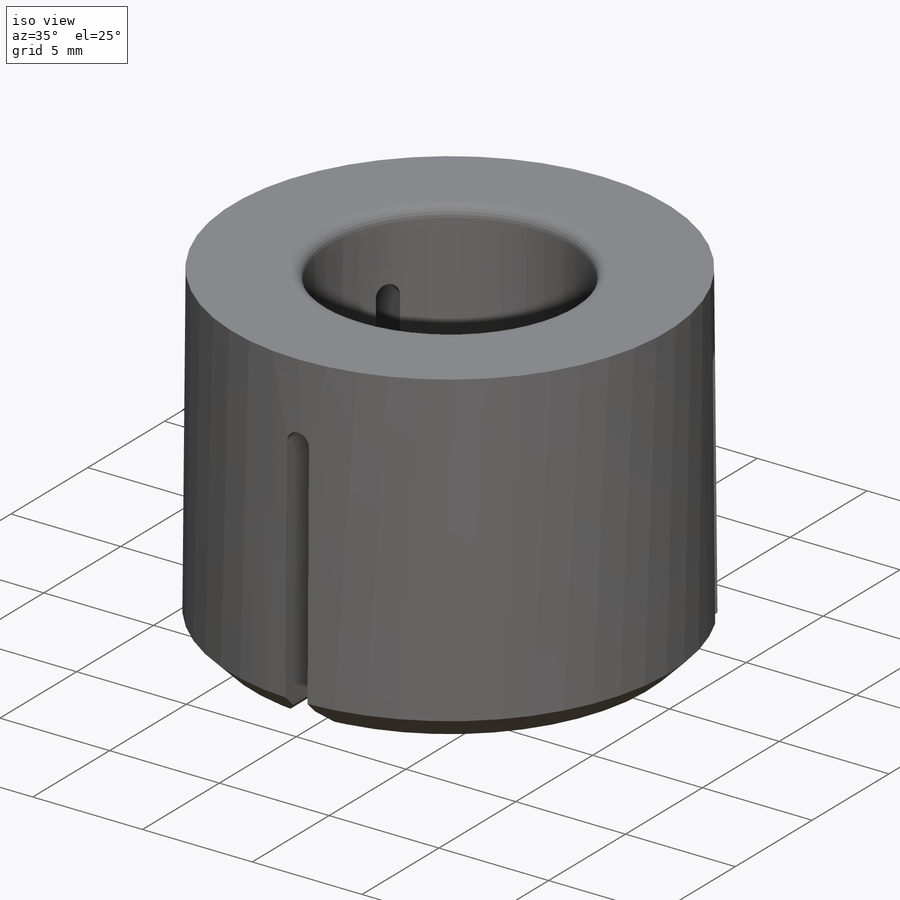
[diagram: iso view]
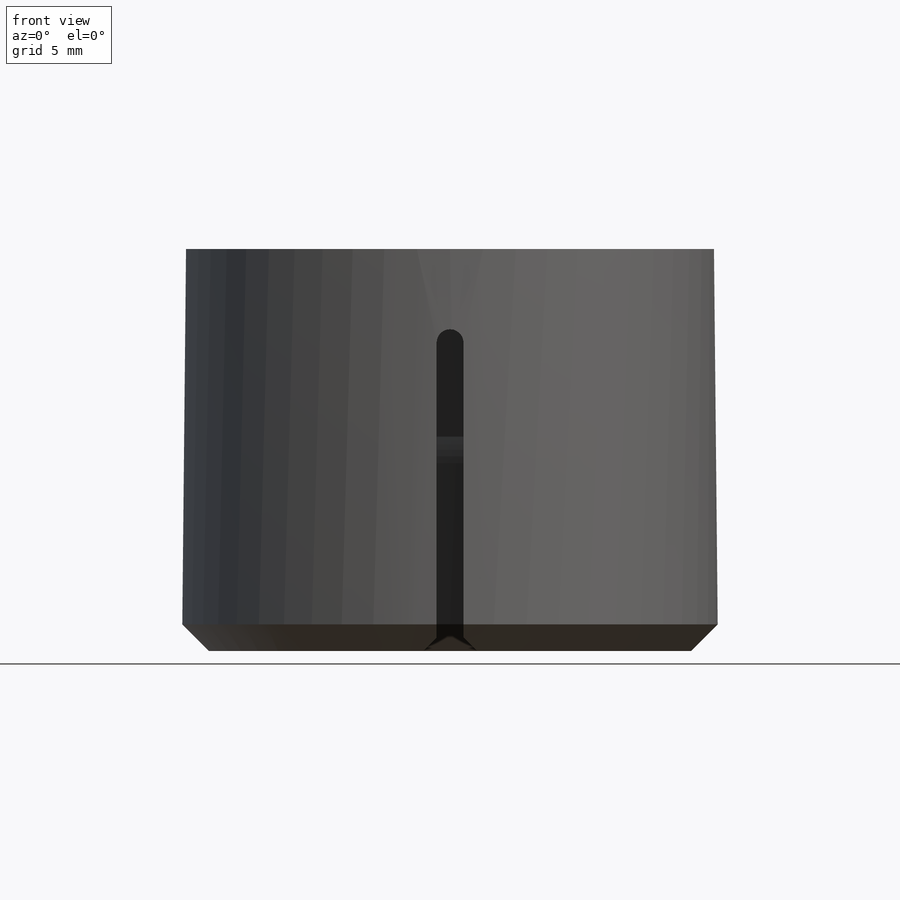
[diagram: front view]
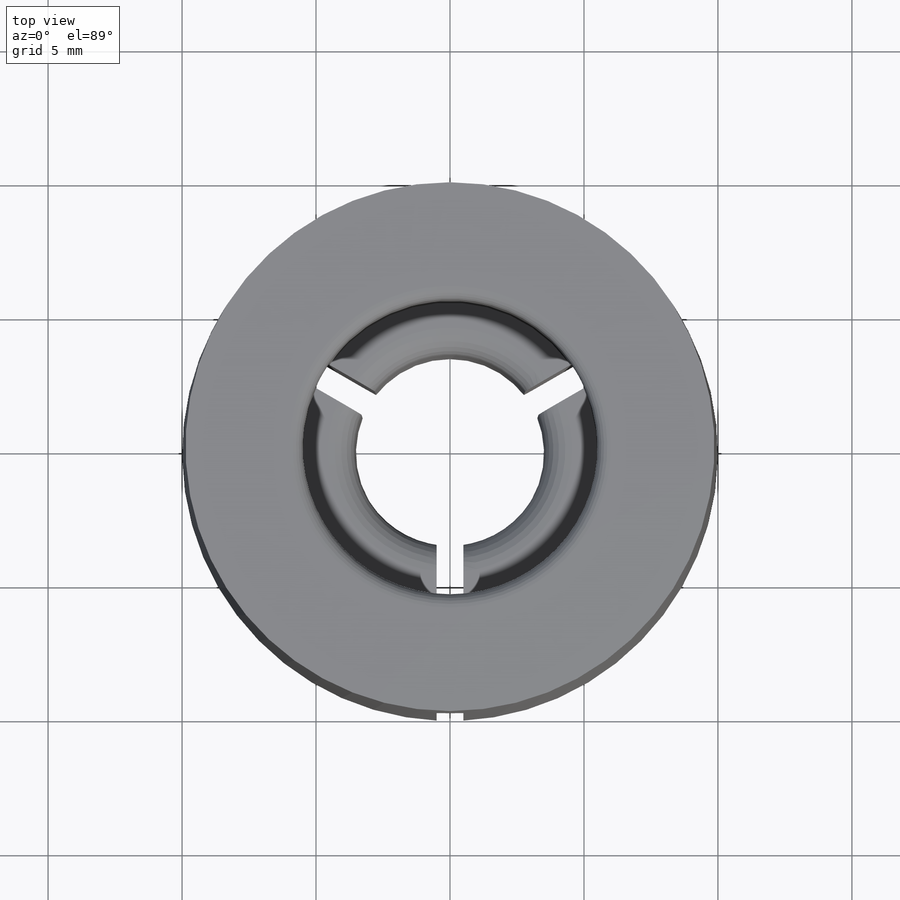
[diagram: top view]
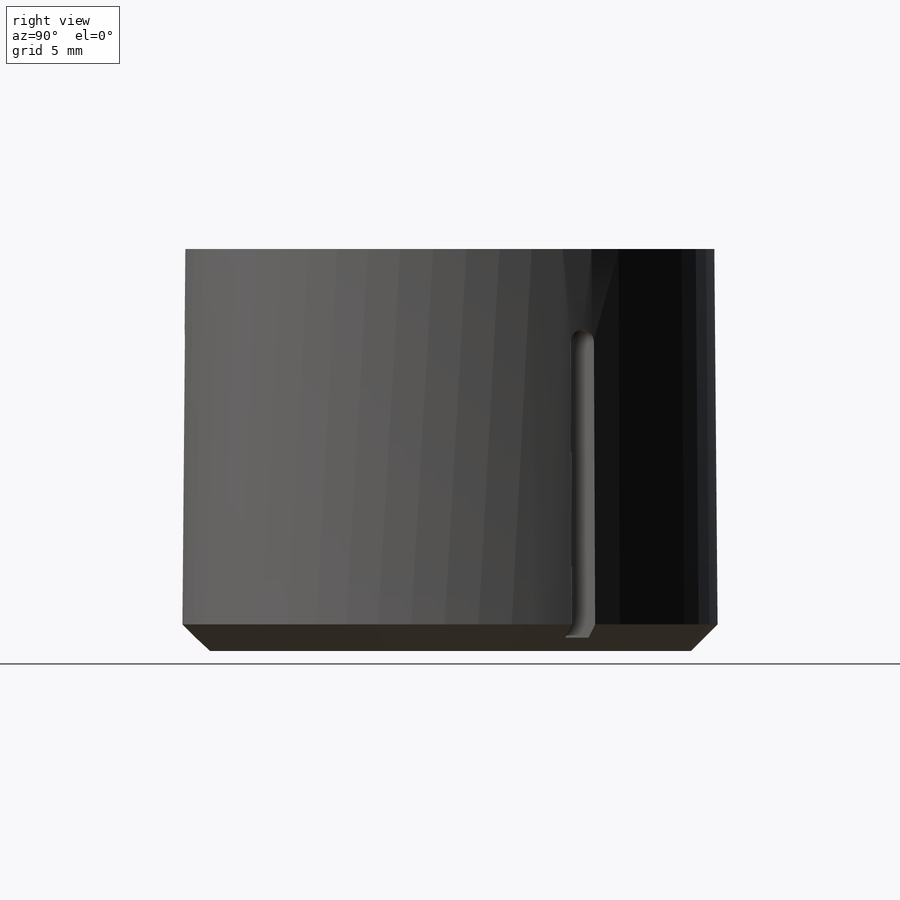
[diagram: right view]
SOLIDWORKS PART (.sldprt)
format: sldprt  version: not decoded by parser v0  size: 285,696 bytes
history: native  units: mm
features: sketch x4, fillet x3, cut_extrude x2, chamfer x2, material x1, extrude x1 (+13 scaffold rows collapsed)
feature tree (26):
  scaffold x13  (default folders/planes/origin — collapsed)
  material  "Material <not specified>"
  sketch  "Sketch1"  dims[D1=7.0mm D2=20.0mm]
  sketch  "Sketch2"  dims[c1.D1=10.0mm c2.D1=2.0deg]
  extrude  "Boss-Extrude1"  Depth=15mm
  sketch  "Sketch3"  dims[D1=11.0mm]
  cut_extrude  "Cut-Extrude1"  Depth=8mm
  chamfer  "Chamfer1"  Distance=1mm Angle=45deg
  fillet  "Fillet1"  Radius=1mm
  sketch  "Sketch4"  dims[c1.D1=3.0deg c2.D1=1.0mm c2.D2=3.0]
  cut_extrude  "Cut-Extrude2"  Depth=3mm
  chamfer  "Chamfer2"  Distance=0.5mm Angle=45deg
  fillet  "Fillet2"  Radius=0.5mm
  fillet  "Fillet3"  Radius=0.5mm
decode coverage: 12 of 12 modeling features carry decoded parameters
note: suppression state not decoded; provenance and decode notes live in map.json
